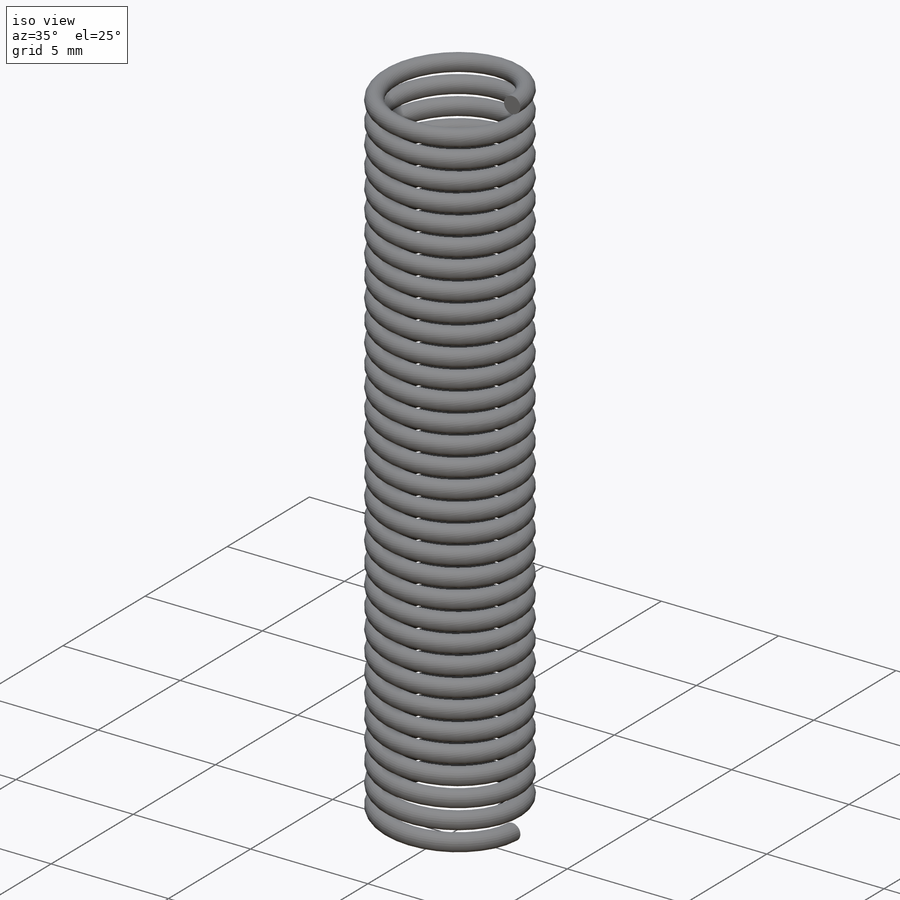
[diagram: iso view]
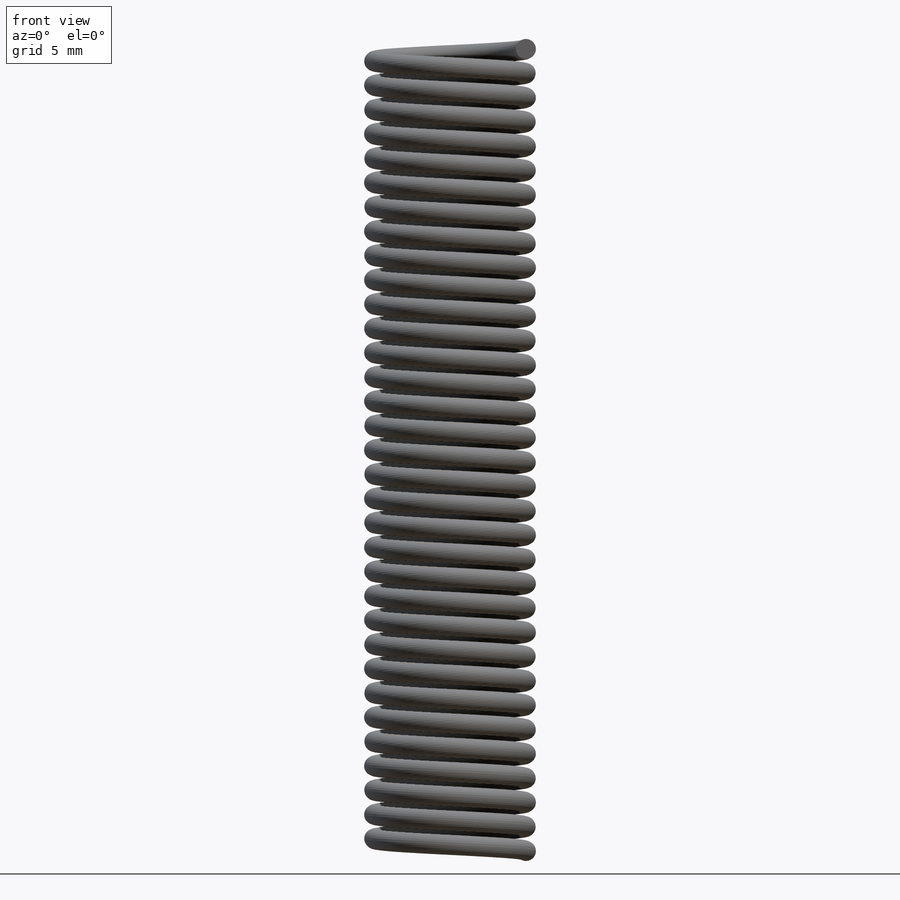
[diagram: front view]
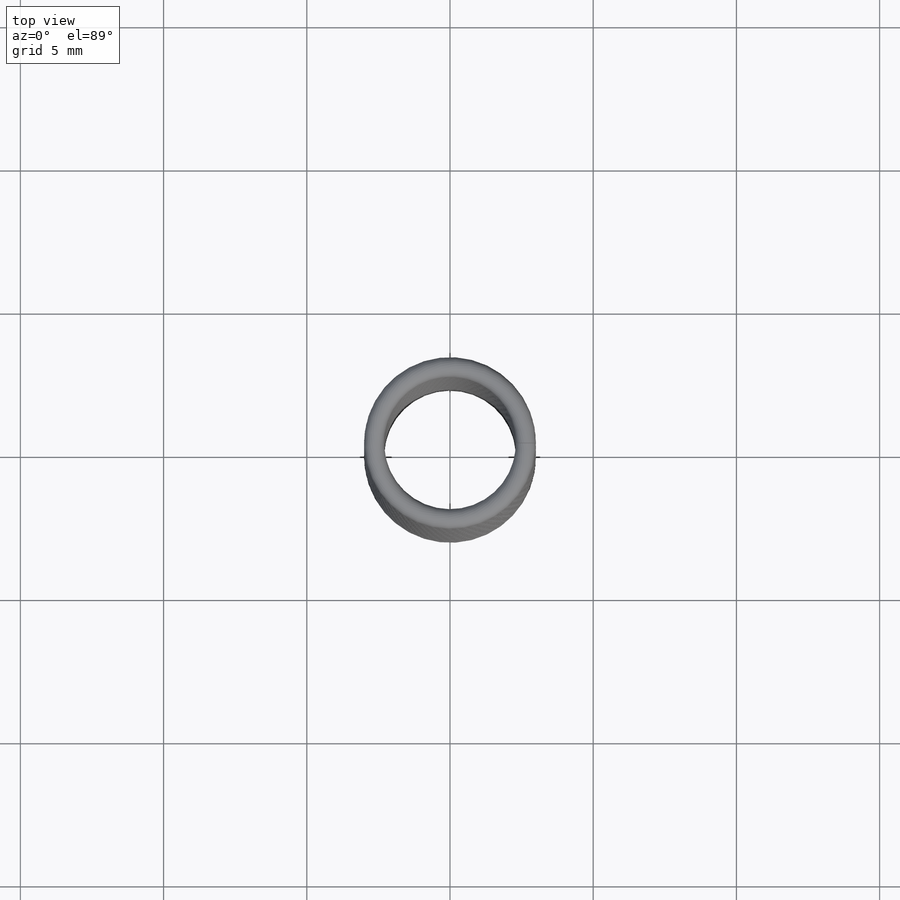
[diagram: top view]
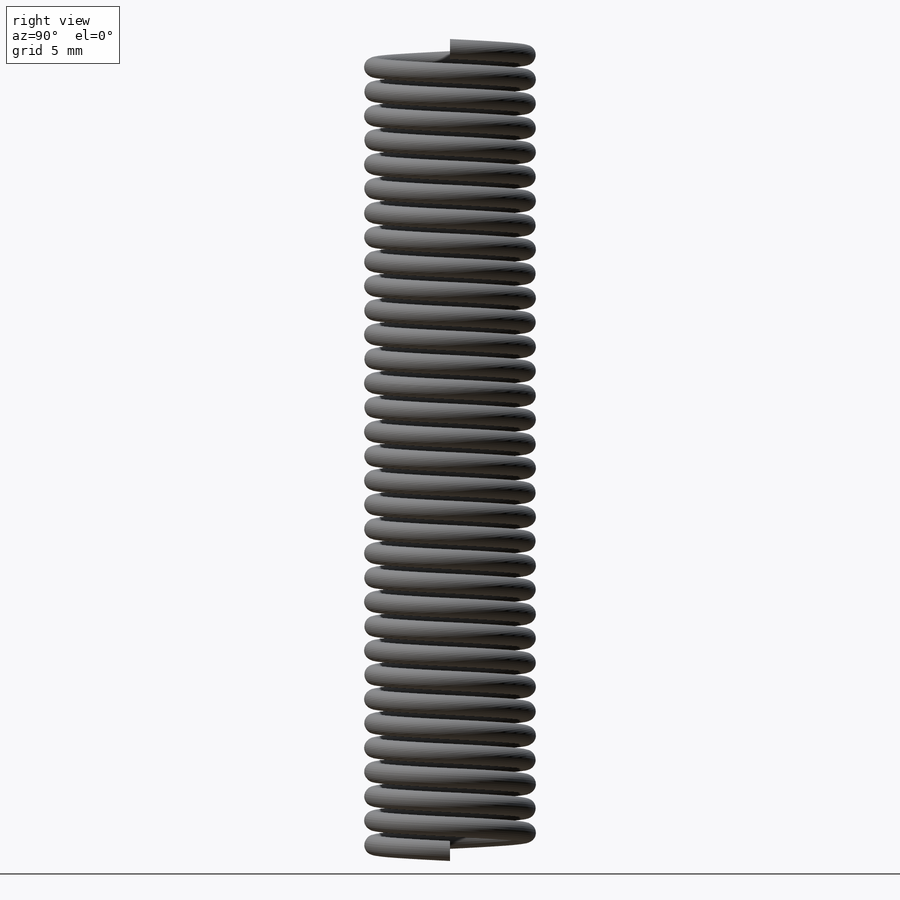
[diagram: right view]
SOLIDWORKS PART (.sldprt)
format: sldprt  version: not decoded by parser v0  size: 1,235,456 bytes
history: native  units: mm
features: sketch x5, revolve x2, material x1, helix x1, sweep x1 (+16 scaffold rows collapsed)
feature tree (26):
  scaffold x16  (default folders/planes/origin — collapsed)
  material  "AISI 304"
  sketch  "Sketch1"  dims[D1=6.0mm D4=0.7mm D2=40.0mm D3=35.0mm]
  sketch  "Sketch2"  dims[D1=0.7mm]
  helix  "Helix/Spiral1"  Pitch=28mm
  sketch  "Sketch3"
  sweep  "Sweep1"
  sketch  "Sketch4"
  revolve  "Revolve1"  Angle=300deg
  sketch  "Sketch7"
  revolve  "Revolve2"  Angle=300deg
decode coverage: 5 of 9 modeling features carry decoded parameters
note: suppression state not decoded; provenance and decode notes live in map.json
